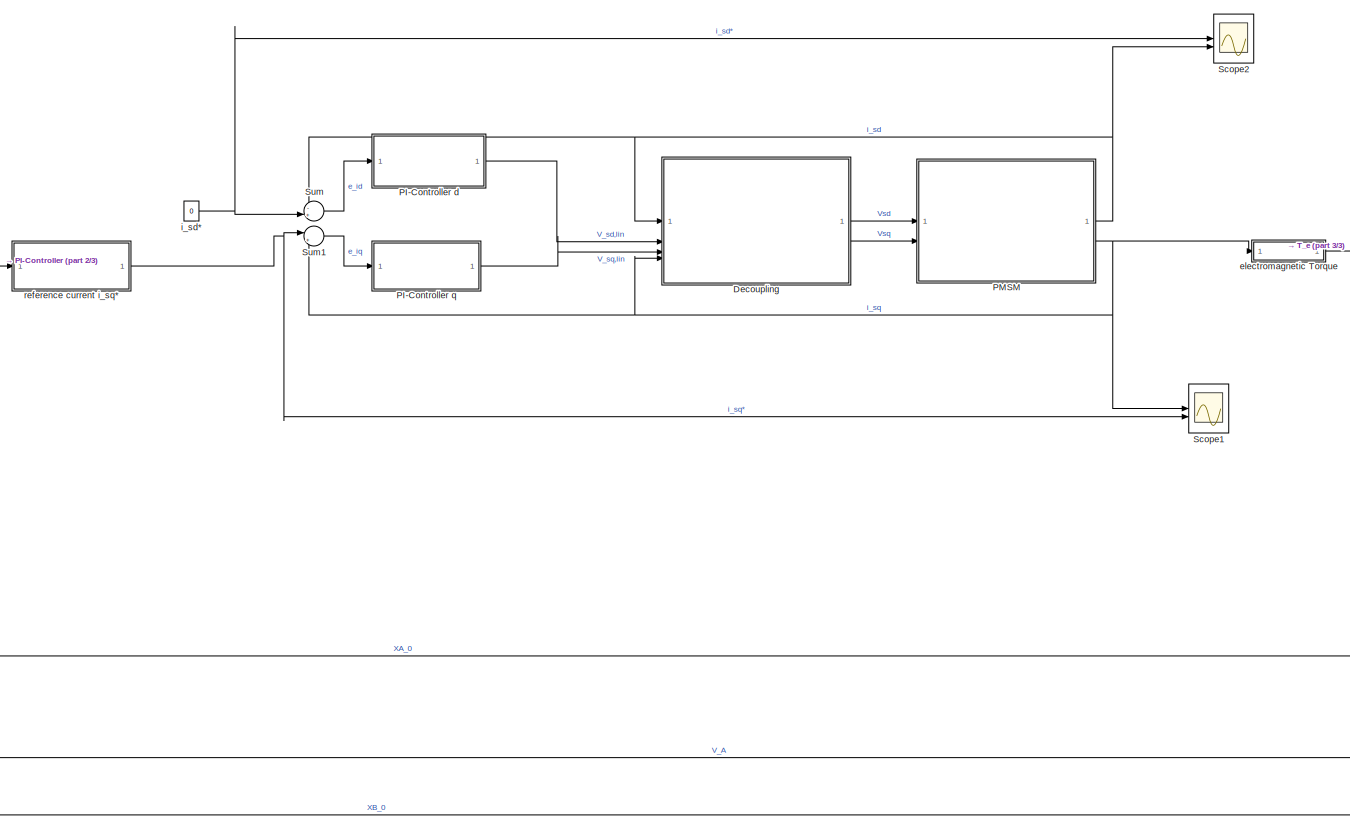
[diagram: root canvas - part 1/3, center side, full height]
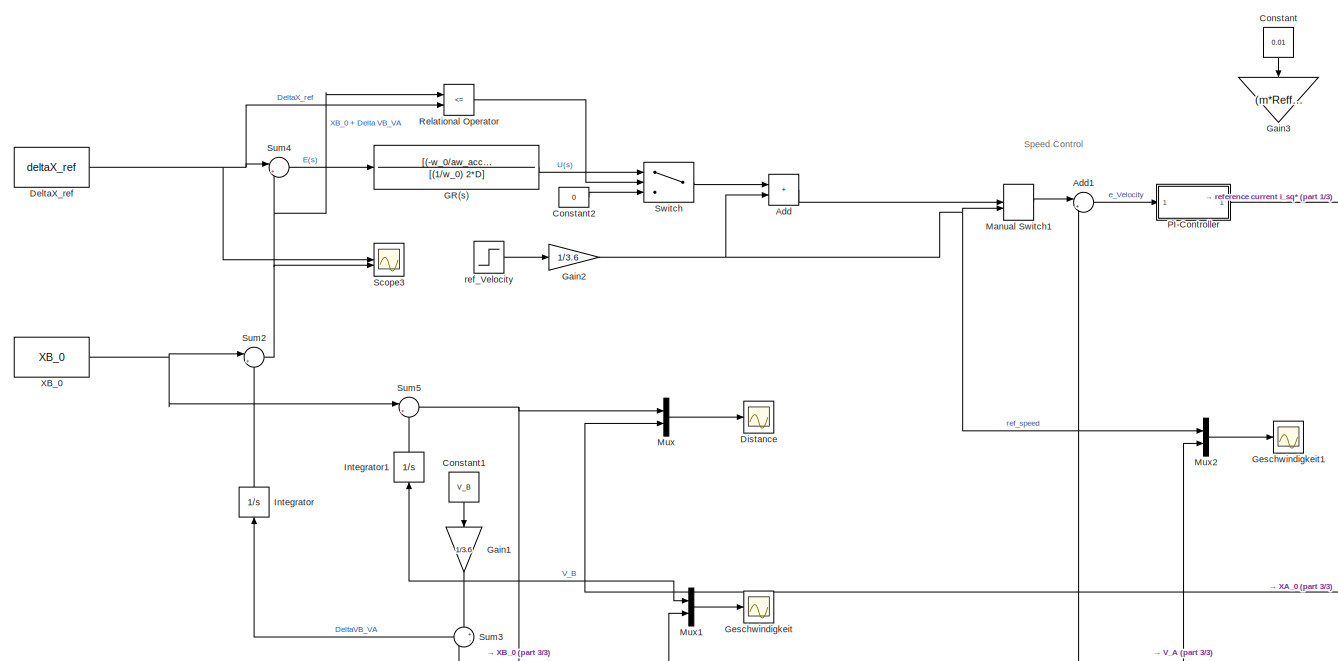
[diagram: root canvas - part 2/3, left side, full height]
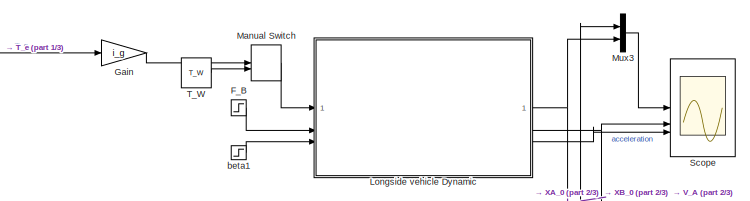
[diagram: root canvas - part 3/3, middle right region]
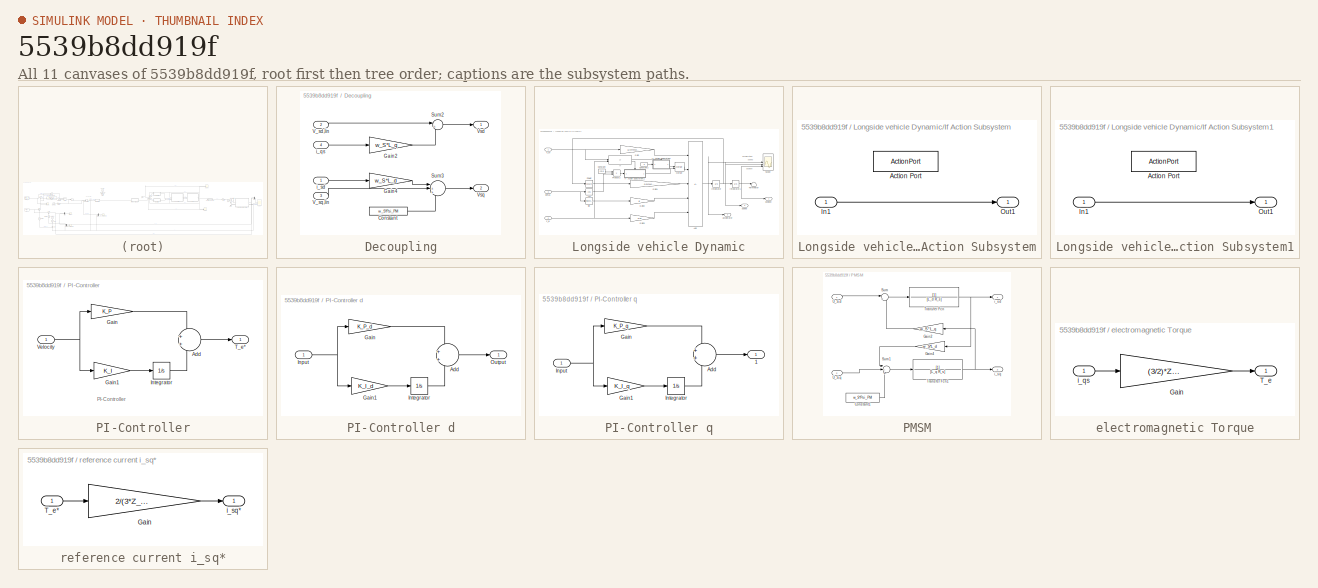
[diagram: thumbnail index - all 11 canvases of the model, root first then tree order]
MODEL slx_5539b8dd919f
KIND model
CONFIG AbsTol = auto
CONFIG EnableMultiTasking = off
CONFIG FixedStep = auto
CONFIG MaxStep = auto
CONFIG MinStep = auto
CONFIG RelTol = 1e-3
CONFIG SampleTimeConstraint = Unconstrained
CONFIG SolverName = VariableStepAuto
CONFIG StartTime = 0.0
CONFIG StopTime = 100
BLOCK [Sum] Add
  IconShape = rectangular
BLOCK [Sum] Add1
  Inputs = |+-
BLOCK [Constant] Constant
  NameLocation = left
  Value = 0.01
BLOCK [Constant] Constant1
  NameLocation = left
  Value = V_B
BLOCK [Constant] Constant2
  Value = 0
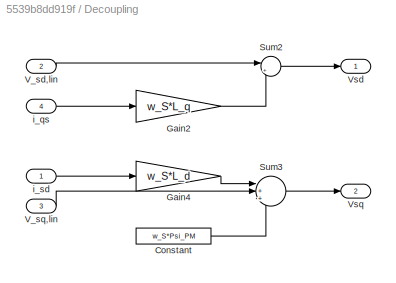
BLOCK [SubSystem] Decoupling
BLOCK [Constant] Decoupling/Constant
  Value = w_S*Psi_PM
BLOCK [Gain] Decoupling/Gain2
  Gain = w_S*L_q
BLOCK [Gain] Decoupling/Gain4
  Gain = w_S*L_d
BLOCK [Sum] Decoupling/Sum2
  Inputs = |+-
BLOCK [Sum] Decoupling/Sum3
  Inputs = |+++
BLOCK [Inport] Decoupling/V_sd,lin
  NameLocation = left
  Port = 2
BLOCK [Inport] Decoupling/V_sq,lin
  NameLocation = left
  Port = 3
BLOCK [Outport] Decoupling/Vsd
BLOCK [Outport] Decoupling/Vsq
  Port = 2
BLOCK [Inport] Decoupling/i_qs
  NameLocation = left
  Port = 4
BLOCK [Inport] Decoupling/i_sd
  NameLocation = left
BLOCK [Constant] DeltaX_ref
  Value = deltaX_ref
BLOCK [Scope] Distance
  Floating = off
  NumInputPorts = 1
  ScopeSpecificationString = Simulink.scopes.TimeScopeBlockCfg('CurrentConfiguration', extmgr.ConfigurationSet(extmgr.Configuration('Core','General UI',true,'FigureColor',[0.831372549019608 0.815686274509804 0.784313725490196]),extmgr.Configuration('Core','Source UI',true),extmgr.Configuration('Sources','WiredSimulink',true,'DataLoggingVariableName','ScopeData3'),extmgr.Configuration('Visuals','Time Domain',true,'SerializedDi...<+2329ch>
BLOCK [Step] F_B
  After = F_B
  SampleTime = 0
BLOCK [TransferFcn] GR(s)
  Denominator = [(1/w_0) 2*D]
  Numerator = [(-w_0/aw_acc) -w_0]
BLOCK [Gain] Gain
  Gain = i_g
BLOCK [Gain] Gain1
  Gain = 1/3.6
  NameLocation = left
BLOCK [Gain] Gain2
  Gain = 1/3.6
BLOCK [Gain] Gain3
  Gain = (m*Reff)/i_g
  NameLocation = left
BLOCK [Scope] Geschwindigkeit
  Floating = off
  NumInputPorts = 1
  ScopeSpecificationString = Simulink.scopes.TimeScopeBlockCfg('CurrentConfiguration', extmgr.ConfigurationSet(extmgr.Configuration('Core','General UI',true,'FigureColor',[0.831372549019608 0.815686274509804 0.784313725490196]),extmgr.Configuration('Core','Source UI',true),extmgr.Configuration('Sources','WiredSimulink',true,'DataLoggingVariableName','ScopeData4'),extmgr.Configuration('Visuals','Time Domain',true,'SerializedDi...<+2329ch>
BLOCK [Scope] Geschwindigkeit1
  Floating = off
  NumInputPorts = 1
  ScopeSpecificationString = Simulink.scopes.TimeScopeBlockCfg('CurrentConfiguration', extmgr.ConfigurationSet(extmgr.Configuration('Core','General UI',true,'FigureColor',[0.831372549019608 0.815686274509804 0.784313725490196]),extmgr.Configuration('Core','Source UI',true),extmgr.Configuration('Sources','WiredSimulink',true,'DataLoggingVariableName','ScopeData1'),extmgr.Configuration('Visuals','Time Domain',true,'SerializedDi...<+2381ch>
BLOCK [Integrator] Integrator
  NameLocation = right
BLOCK [Integrator] Integrator1
  NameLocation = right
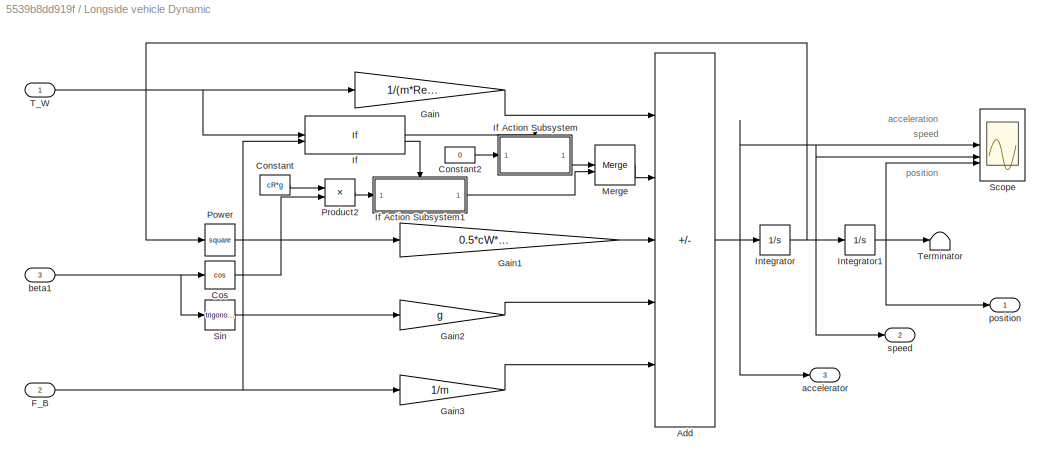
BLOCK [SubSystem] Longside vehicle Dynamic
BLOCK [Sum] Longside vehicle Dynamic/Add
  IconShape = rectangular
  Inputs = +----
BLOCK [Constant] Longside vehicle Dynamic/Constant
  Value = cR*g
BLOCK [Constant] Longside vehicle Dynamic/Constant2
  Value = 0
BLOCK [Trigonometry] Longside vehicle Dynamic/Cos
  Operator = cos
BLOCK [Inport] Longside vehicle Dynamic/F_B
  Port = 2
BLOCK [Gain] Longside vehicle Dynamic/Gain
  Gain = 1/(m*Reff)
BLOCK [Gain] Longside vehicle Dynamic/Gain1
  Gain = 0.5*cW*(A_aero*rho_air/m)
BLOCK [Gain] Longside vehicle Dynamic/Gain2
  Gain = g
BLOCK [Gain] Longside vehicle Dynamic/Gain3
  Gain = 1/m
BLOCK [If] Longside vehicle Dynamic/If
  ElseIfExpressions = u1 | u2 ~= 0
  IfExpression = u1 & u2 == 0
  NumInputs = 2
  ShowElse = off
BLOCK [SubSystem] Longside vehicle Dynamic/If Action Subsystem
  TreatAsAtomicUnit = on
BLOCK [ActionPort] Longside vehicle Dynamic/If Action Subsystem/Action Port
  ActionPortLabel = if(u1 & u2 == 0)
BLOCK [Inport] Longside vehicle Dynamic/If Action Subsystem/In1
BLOCK [Outport] Longside vehicle Dynamic/If Action Subsystem/Out1
BLOCK [SubSystem] Longside vehicle Dynamic/If Action Subsystem1
  TreatAsAtomicUnit = on
BLOCK [ActionPort] Longside vehicle Dynamic/If Action Subsystem1/Action Port
  ActionPortLabel = elseif(u1 | u2 ~= 0)
BLOCK [Inport] Longside vehicle Dynamic/If Action Subsystem1/In1
BLOCK [Outport] Longside vehicle Dynamic/If Action Subsystem1/Out1
BLOCK [Integrator] Longside vehicle Dynamic/Integrator
BLOCK [Integrator] Longside vehicle Dynamic/Integrator1
BLOCK [Merge] Longside vehicle Dynamic/Merge
BLOCK [Math] Longside vehicle Dynamic/Power
  Operator = square
BLOCK [Product] Longside vehicle Dynamic/Product2
BLOCK [Scope] Longside vehicle Dynamic/Scope
  Floating = off
  NumInputPorts = 3
  ScopeSpecificationString = Simulink.scopes.TimeScopeBlockCfg('CurrentConfiguration', extmgr.ConfigurationSet(extmgr.Configuration('Core','General UI',true,'FigureColor',[0.831372549019608 0.815686274509804 0.784313725490196]),extmgr.Configuration('Core','Source UI',true),extmgr.Configuration('Sources','WiredSimulink',true),extmgr.Configuration('Visuals','Time Domain',true,'SerializedDisplays',{struct('MinYLimReal','-0.03194...<+3887ch>
BLOCK [Trigonometry] Longside vehicle Dynamic/Sin
BLOCK [Inport] Longside vehicle Dynamic/T_W
BLOCK [Terminator] Longside vehicle Dynamic/Terminator
BLOCK [Outport] Longside vehicle Dynamic/accelerator
  Port = 3
BLOCK [Inport] Longside vehicle Dynamic/beta1
  Port = 3
BLOCK [Outport] Longside vehicle Dynamic/position
BLOCK [Outport] Longside vehicle Dynamic/speed
  Port = 2
BLOCK [ManualSwitch] Manual Switch
BLOCK [ManualSwitch] Manual Switch1
BLOCK [Mux] Mux
  DisplayOption = bar
  Inputs = 2
BLOCK [Mux] Mux1
  DisplayOption = bar
  Inputs = 2
BLOCK [Mux] Mux2
  DisplayOption = bar
  Inputs = 2
BLOCK [Mux] Mux3
  DisplayOption = bar
  Inputs = 2
BLOCK [SubSystem] PI-Controller
BLOCK [SubSystem] PI-Controller d
BLOCK [Sum] PI-Controller d/Add
BLOCK [Gain] PI-Controller d/Gain
  Gain = K_P_d
BLOCK [Gain] PI-Controller d/Gain1
  Gain = K_I_d
BLOCK [Inport] PI-Controller d/Input
BLOCK [Integrator] PI-Controller d/Integrator
BLOCK [Outport] PI-Controller d/Output
BLOCK [SubSystem] PI-Controller q
BLOCK [Outport] PI-Controller q/1
BLOCK [Sum] PI-Controller q/Add
BLOCK [Gain] PI-Controller q/Gain
  Gain = K_P_q
BLOCK [Gain] PI-Controller q/Gain1
  Gain = K_I_q
BLOCK [Inport] PI-Controller q/Input
BLOCK [Integrator] PI-Controller q/Integrator
BLOCK [Sum] PI-Controller/Add
BLOCK [Gain] PI-Controller/Gain
  Gain = K_P
BLOCK [Gain] PI-Controller/Gain1
  Gain = K_I
BLOCK [Integrator] PI-Controller/Integrator
BLOCK [Outport] PI-Controller/T_e*
BLOCK [Inport] PI-Controller/Velocity
BLOCK [SubSystem] PMSM
BLOCK [Constant] PMSM/Constant1
  Value = w_S*Psi_PM
BLOCK [Gain] PMSM/Gain2
  Gain = w_S*L_q
  NameLocation = top
BLOCK [Gain] PMSM/Gain4
  Gain = w_S*L_d
  NameLocation = top
BLOCK [Sum] PMSM/Sum
  Inputs = |++
BLOCK [Sum] PMSM/Sum1
  Inputs = |-+-
BLOCK [TransferFcn] PMSM/Transfer Fcn
  Denominator = [L_d R_s]
BLOCK [TransferFcn] PMSM/Transfer Fcn1
  Denominator = [L_q R_s]
BLOCK [Inport] PMSM/U_S,d
BLOCK [Inport] PMSM/U_S,q
  Port = 2
BLOCK [Outport] PMSM/i_sd
BLOCK [Outport] PMSM/i_sq
  Port = 2
BLOCK [RelationalOperator] Relational Operator
  InputSameDT = off
  Operator = <=
  OutDataTypeStr = boolean
  RndMeth = Simplest
BLOCK [Scope] Scope
  Floating = off
  NumInputPorts = 3
  ScopeSpecificationString = Simulink.scopes.TimeScopeBlockCfg('CurrentConfiguration', extmgr.ConfigurationSet(extmgr.Configuration('Core','General UI',true,'FigureColor',[0.831372549019608 0.815686274509804 0.784313725490196]),extmgr.Configuration('Core','Source UI',true),extmgr.Configuration('Sources','WiredSimulink',true,'DataLoggingVariableName','ScopeData1'),extmgr.Configuration('Visuals','Time Domain',true,'SerializedDi...<+5614ch>
BLOCK [Scope] Scope1
  Floating = off
  NumInputPorts = 2
  ScopeSpecificationString = Simulink.scopes.TimeScopeBlockCfg('CurrentConfiguration', extmgr.ConfigurationSet(extmgr.Configuration('Core','General UI',true,'FigureColor',[0.831372549019608 0.815686274509804 0.784313725490196]),extmgr.Configuration('Core','Source UI',true),extmgr.Configuration('Sources','WiredSimulink',true,'DataLoggingVariableName','ScopeData1'),extmgr.Configuration('Visuals','Time Domain',true,'SerializedDi...<+2338ch>
BLOCK [Scope] Scope2
  Floating = off
  NumInputPorts = 2
  ScopeSpecificationString = Simulink.scopes.TimeScopeBlockCfg('CurrentConfiguration', extmgr.ConfigurationSet(extmgr.Configuration('Core','General UI',true,'FigureColor',[0.831372549019608 0.815686274509804 0.784313725490196]),extmgr.Configuration('Core','Source UI',true),extmgr.Configuration('Sources','WiredSimulink',true,'DataLoggingVariableName','ScopeData1'),extmgr.Configuration('Visuals','Time Domain',true,'SerializedDi...<+2278ch>
BLOCK [Scope] Scope3
  Floating = off
  NumInputPorts = 2
  ScopeSpecificationString = Simulink.scopes.TimeScopeBlockCfg('CurrentConfiguration', extmgr.ConfigurationSet(extmgr.Configuration('Core','General UI',true),extmgr.Configuration('Core','Source UI',true),extmgr.Configuration('Sources','WiredSimulink',true,'DataLoggingVariableName','ScopeData2'),extmgr.Configuration('Visuals','Time Domain',true,'SerializedDisplays',{struct('MinYLimReal','-25.68695','MaxYLimReal','595.96272','Y...<+1589ch>
BLOCK [Sum] Sum
  Inputs = -+|
BLOCK [Sum] Sum1
  Inputs = |+-
BLOCK [Sum] Sum2
  Inputs = |++
BLOCK [Sum] Sum3
  Inputs = +-
  NameLocation = top
BLOCK [Sum] Sum4
  Inputs = |+-
BLOCK [Sum] Sum5
  Inputs = |++
BLOCK [Switch] Switch
  Criteria = u2 ~= 0
  InputSameDT = off
  SaturateOnIntegerOverflow = off
BLOCK [Constant] T_W
  Value = T_W
BLOCK [Constant] XB_0
  Value = XB_0
BLOCK [Step] beta1
  After = beta1
  SampleTime = 0
BLOCK [SubSystem] electromagnetic Torque
BLOCK [Gain] electromagnetic Torque/Gain
  Gain = (3/2)*Z_p*Psi_PM
BLOCK [Outport] electromagnetic Torque/T_e
BLOCK [Inport] electromagnetic Torque/i_qs
BLOCK [Constant] i_sd*
  NameLocation = left
  Value = 0
BLOCK [Step] ref_Velocity
  After = 100
  SampleTime = 0
BLOCK [SubSystem] reference current i_sq*
BLOCK [Gain] reference current i_sq*/Gain
  Gain = 2/(3*Z_p*Psi_PM)
BLOCK [Inport] reference current i_sq*/T_e*
BLOCK [Outport] reference current i_sq*/i_sq*
ANNOTATION (root): Speed Control
ANNOTATION Longside vehicle Dynamic: acceleration
ANNOTATION Longside vehicle Dynamic: position
ANNOTATION Longside vehicle Dynamic: speed
ANNOTATION PI-Controller: PI-Controller
LINE Add1:1 -> PI-Controller:1
LINE Add:1 -> Manual Switch1:1
LINE Constant1:1 -> Gain1:1
LINE Constant2:1 -> Switch:3
LINE Constant:1 -> Gain3:1
LINE Decoupling/Constant:1 -> Decoupling/Sum3:3
LINE Decoupling/Gain2:1 -> Decoupling/Sum2:2
LINE Decoupling/Gain4:1 -> Decoupling/Sum3:1
LINE Decoupling/Sum2:1 -> Decoupling/Vsd:1
LINE Decoupling/Sum3:1 -> Decoupling/Vsq:1
LINE Decoupling/V_sd,lin:1 -> Decoupling/Sum2:1
LINE Decoupling/V_sq,lin:1 -> Decoupling/Sum3:2
LINE Decoupling/i_qs:1 -> Decoupling/Gain2:1
LINE Decoupling/i_sd:1 -> Decoupling/Gain4:1
LINE Decoupling:1 -> PMSM:1
LINE Decoupling:2 -> PMSM:2
NET DeltaX_ref:1 -> Relational Operator:2, Scope3:1, Sum4:1
LINE F_B:1 -> Longside vehicle Dynamic:2
LINE GR(s):1 -> Switch:1
NET Gain1:1 -> Integrator1:1, Mux1:1, Sum3:1
NET Gain2:1 -> Add:2, Manual Switch1:2, Mux2:1
LINE Gain:1 -> Manual Switch:1
LINE Integrator1:1 -> Sum5:2
LINE Integrator:1 -> Sum2:2
NET Longside vehicle Dynamic/Add:1 -> Longside vehicle Dynamic/Integrator:1, Longside vehicle Dynamic/Scope:1, Longside vehicle Dynamic/accelerator:1
LINE Longside vehicle Dynamic/Constant2:1 -> Longside vehicle Dynamic/If Action Subsystem:1
LINE Longside vehicle Dynamic/Constant:1 -> Longside vehicle Dynamic/Product2:1
LINE Longside vehicle Dynamic/Cos:1 -> Longside vehicle Dynamic/Product2:2
NET Longside vehicle Dynamic/F_B:1 -> Longside vehicle Dynamic/Gain3:1, Longside vehicle Dynamic/If:2
LINE Longside vehicle Dynamic/Gain1:1 -> Longside vehicle Dynamic/Add:3
LINE Longside vehicle Dynamic/Gain2:1 -> Longside vehicle Dynamic/Add:4
LINE Longside vehicle Dynamic/Gain3:1 -> Longside vehicle Dynamic/Add:5
LINE Longside vehicle Dynamic/Gain:1 -> Longside vehicle Dynamic/Add:1
LINE Longside vehicle Dynamic/If Action Subsystem/In1:1 -> Longside vehicle Dynamic/If Action Subsystem/Out1:1
LINE Longside vehicle Dynamic/If Action Subsystem1/In1:1 -> Longside vehicle Dynamic/If Action Subsystem1/Out1:1
LINE Longside vehicle Dynamic/If Action Subsystem1:1 -> Longside vehicle Dynamic/Merge:2
LINE Longside vehicle Dynamic/If Action Subsystem:1 -> Longside vehicle Dynamic/Merge:1
LINE Longside vehicle Dynamic/If:1 -> Longside vehicle Dynamic/If Action Subsystem:ifaction
LINE Longside vehicle Dynamic/If:2 -> Longside vehicle Dynamic/If Action Subsystem1:ifaction
NET Longside vehicle Dynamic/Integrator1:1 -> Longside vehicle Dynamic/Scope:3, Longside vehicle Dynamic/Terminator:1, Longside vehicle Dynamic/position:1
NET Longside vehicle Dynamic/Integrator:1 -> Longside vehicle Dynamic/Integrator1:1, Longside vehicle Dynamic/Power:1, Longside vehicle Dynamic/Scope:2, Longside vehicle Dynamic/speed:1
LINE Longside vehicle Dynamic/Merge:1 -> Longside vehicle Dynamic/Add:2
LINE Longside vehicle Dynamic/Power:1 -> Longside vehicle Dynamic/Gain1:1
LINE Longside vehicle Dynamic/Product2:1 -> Longside vehicle Dynamic/If Action Subsystem1:1
LINE Longside vehicle Dynamic/Sin:1 -> Longside vehicle Dynamic/Gain2:1
NET Longside vehicle Dynamic/T_W:1 -> Longside vehicle Dynamic/Gain:1, Longside vehicle Dynamic/If:1
NET Longside vehicle Dynamic/beta1:1 -> Longside vehicle Dynamic/Cos:1, Longside vehicle Dynamic/Sin:1
NET Longside vehicle Dynamic:1 -> Mux3:2, Mux:2
NET Longside vehicle Dynamic:2 -> Add1:2, Mux1:2, Mux2:2, Scope:2, Sum3:2
LINE Longside vehicle Dynamic:3 -> Scope:3
LINE Manual Switch1:1 -> Add1:1
LINE Manual Switch:1 -> Longside vehicle Dynamic:1
LINE Mux1:1 -> Geschwindigkeit:1
LINE Mux2:1 -> Geschwindigkeit1:1
LINE Mux3:1 -> Scope:1
LINE Mux:1 -> Distance:1
LINE PI-Controller d/Add:1 -> PI-Controller d/Output:1
LINE PI-Controller d/Gain1:1 -> PI-Controller d/Integrator:1
LINE PI-Controller d/Gain:1 -> PI-Controller d/Add:1
NET PI-Controller d/Input:1 -> PI-Controller d/Gain1:1, PI-Controller d/Gain:1
LINE PI-Controller d/Integrator:1 -> PI-Controller d/Add:2
LINE PI-Controller d:1 -> Decoupling:2
LINE PI-Controller q/Add:1 -> PI-Controller q/1:1
LINE PI-Controller q/Gain1:1 -> PI-Controller q/Integrator:1
LINE PI-Controller q/Gain:1 -> PI-Controller q/Add:1
NET PI-Controller q/Input:1 -> PI-Controller q/Gain1:1, PI-Controller q/Gain:1
LINE PI-Controller q/Integrator:1 -> PI-Controller q/Add:2
LINE PI-Controller q:1 -> Decoupling:3
LINE PI-Controller/Add:1 -> PI-Controller/T_e*:1
LINE PI-Controller/Gain1:1 -> PI-Controller/Integrator:1
LINE PI-Controller/Gain:1 -> PI-Controller/Add:1
LINE PI-Controller/Integrator:1 -> PI-Controller/Add:2
NET PI-Controller/Velocity:1 -> PI-Controller/Gain1:1, PI-Controller/Gain:1
LINE PI-Controller:1 -> reference current i_sq*:1
LINE PMSM/Constant1:1 -> PMSM/Sum1:3
LINE PMSM/Gain2:1 -> PMSM/Sum:2
LINE PMSM/Gain4:1 -> PMSM/Sum1:1
LINE PMSM/Sum1:1 -> PMSM/Transfer Fcn1:1
LINE PMSM/Sum:1 -> PMSM/Transfer Fcn:1
NET PMSM/Transfer Fcn1:1 -> PMSM/Gain2:1, PMSM/i_sq:1
NET PMSM/Transfer Fcn:1 -> PMSM/Gain4:1, PMSM/i_sd:1
LINE PMSM/U_S,d:1 -> PMSM/Sum:1
LINE PMSM/U_S,q:1 -> PMSM/Sum1:2
NET PMSM:1 -> Decoupling:1, Scope2:2, Sum:1
NET PMSM:2 -> Decoupling:4, Scope1:1, Sum1:2, electromagnetic Torque:1
LINE Relational Operator:1 -> Switch:2
LINE Sum1:1 -> PI-Controller q:1
NET Sum2:1 -> Relational Operator:1, Scope3:2, Sum4:2
LINE Sum3:1 -> Integrator:1
LINE Sum4:1 -> GR(s):1
NET Sum5:1 -> Mux3:1, Mux:1
LINE Sum:1 -> PI-Controller d:1
LINE Switch:1 -> Add:1
LINE T_W:1 -> Manual Switch:2
NET XB_0:1 -> Sum2:1, Sum5:1
LINE beta1:1 -> Longside vehicle Dynamic:3
LINE electromagnetic Torque/Gain:1 -> electromagnetic Torque/T_e:1
LINE electromagnetic Torque/i_qs:1 -> electromagnetic Torque/Gain:1
LINE electromagnetic Torque:1 -> Gain:1
NET i_sd*:1 -> Scope2:1, Sum:2
LINE ref_Velocity:1 -> Gain2:1
LINE reference current i_sq*/Gain:1 -> reference current i_sq*/i_sq*:1
LINE reference current i_sq*/T_e*:1 -> reference current i_sq*/Gain:1
NET reference current i_sq*:1 -> Scope1:2, Sum1:1
note: NET lines group one-source signal fan-out (src -> all destinations, sorted); 1:1 wires keep LINE
